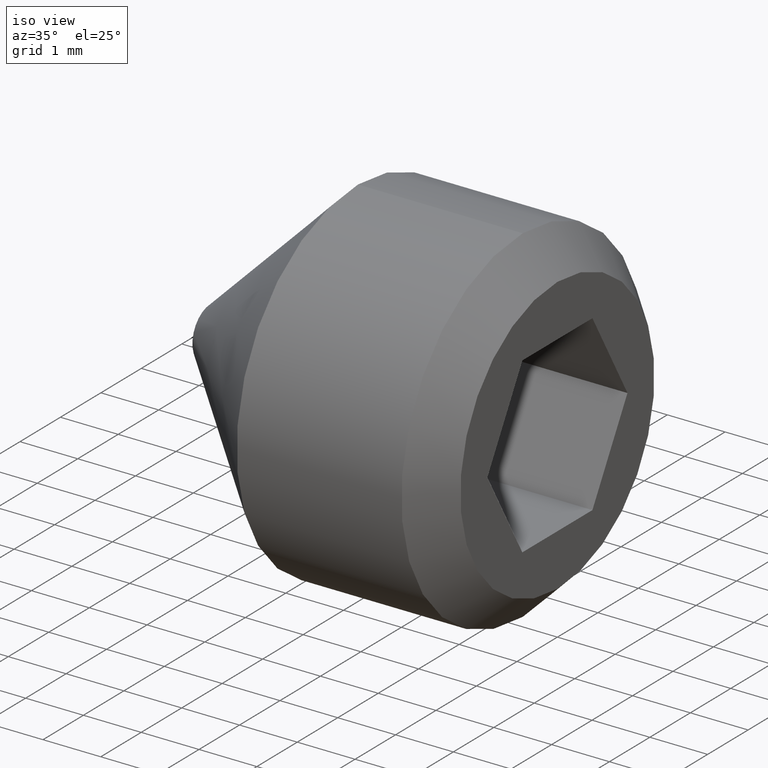
[diagram: clean part render]
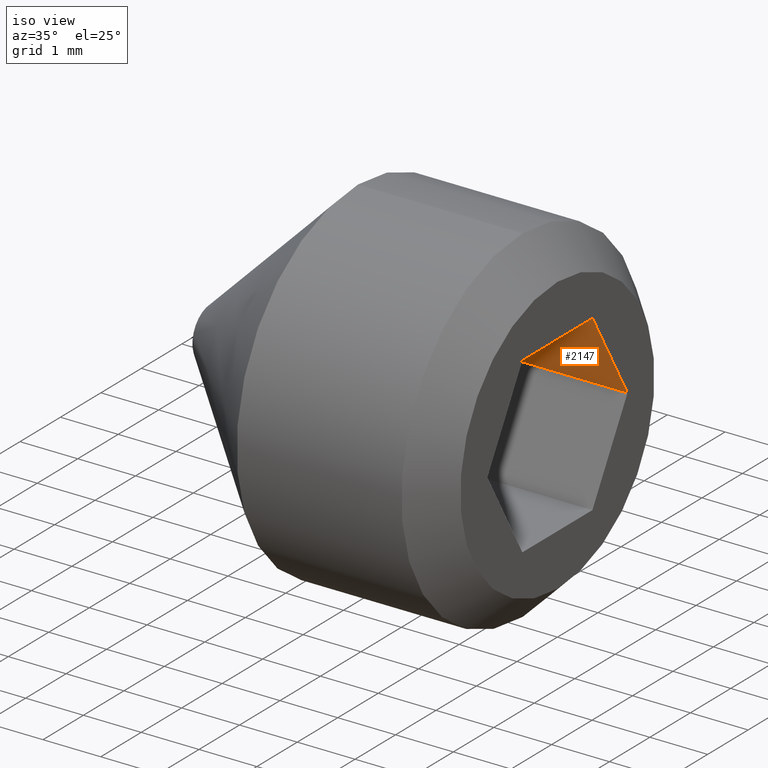
[diagram: same view with one face highlighted and labeled with its STEP entity id]
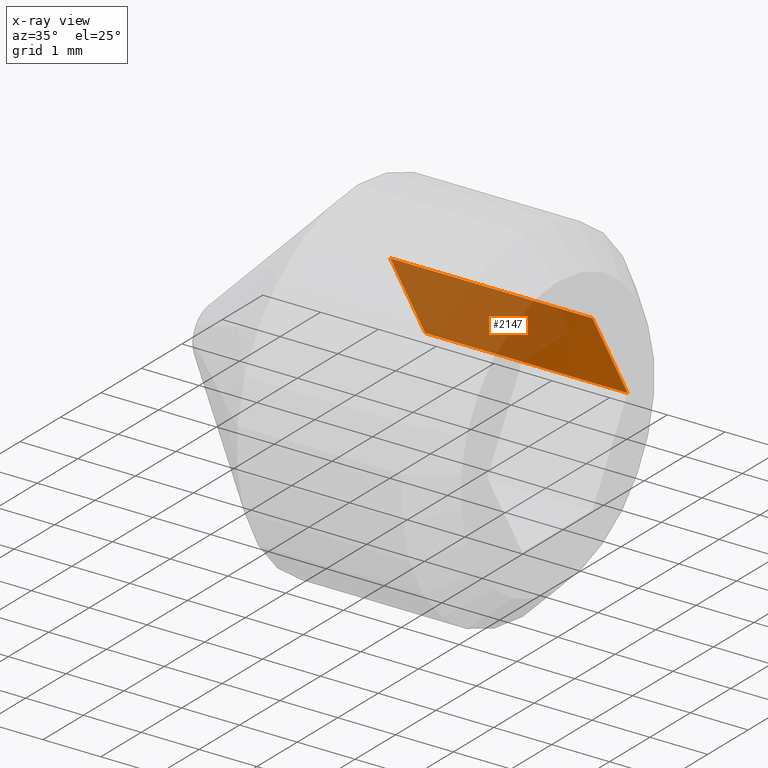
[diagram: x-ray of the same camera — body ghosted, the highlighted face saturated]
A machine part, iso view. The second image highlights one B-rep face of the part: STEP entity #2147.
The next image is the same camera in x-ray: the body ghosted, the highlighted face saturated — about 71% of this face is hidden behind the body in this view.
In plain terms, the highlighted planar face has unit normal (-0, 0.866, 0.5).
Its self-contained STEP definition (entity closure, byte-faithful):
#36 = VECTOR ( 'NONE', #8162, 1000.000000000000000 ) ;
#286 = DIRECTION ( 'NONE',  ( 1.000000000000000000, -0.0000000000000000000, 6.123031769111886300E-017 ) ) ;
#680 = EDGE_CURVE ( 'NONE', #5619, #4256, #2471, .T. ) ;
#943 = DIRECTION ( 'NONE',  ( 0.0000000000000000000, -0.5000000000000000000, 0.8660254037844386000 ) ) ;
#1212 = DIRECTION ( 'NONE',  ( -3.061515884555943800E-017, 0.8660254037844387100, 0.5000000000000001100 ) ) ;
#1507 = CARTESIAN_POINT ( 'NONE',  ( 2.500000000000000000, 1.732050807568877900, 1.891394403777266000E-016 ) ) ;
#2007 = CARTESIAN_POINT ( 'NONE',  ( 2.500000000000000000, 1.732050807568877900, 1.891394403777266000E-016 ) ) ;
#2064 = ORIENTED_EDGE ( 'NONE', *, *, #4387, .F. ) ;
#2147 = ADVANCED_FACE ( 'NONE', ( #6385 ), #3690, .F. ) ;
#2471 = LINE ( 'NONE', #4522, #9095 ) ;
#2600 = CARTESIAN_POINT ( 'NONE',  ( 2.500000000000000000, 1.732050807568877900, 1.891394403777266000E-016 ) ) ;
#2626 = EDGE_CURVE ( 'NONE', #10735, #4256, #2858, .T. ) ;
#2858 = LINE ( 'NONE', #8204, #6663 ) ;
#3690 = PLANE ( 'NONE',  #5421 ) ;
#3766 = VECTOR ( 'NONE', #943, 1000.000000000000200 ) ;
#3933 = VERTEX_POINT ( 'NONE', #2007 ) ;
#4256 = VERTEX_POINT ( 'NONE', #9251 ) ;
#4387 = EDGE_CURVE ( 'NONE', #3933, #5619, #4789, .T. ) ;
#4522 = CARTESIAN_POINT ( 'NONE',  ( 2.500000000000000000, 0.8660254037844393700, 1.499999999999999800 ) ) ;
#4576 = ORIENTED_EDGE ( 'NONE', *, *, #10613, .T. ) ;
#4789 = LINE ( 'NONE', #2600, #3766 ) ;
#4824 = CARTESIAN_POINT ( 'NONE',  ( 6.000000000000000000, 1.732050807568877900, 4.034455522966426400E-016 ) ) ;
#5326 = ORIENTED_EDGE ( 'NONE', *, *, #680, .F. ) ;
#5421 = AXIS2_PLACEMENT_3D ( 'NONE', #5464, #1212, #7941 ) ;
#5464 = CARTESIAN_POINT ( 'NONE',  ( 2.500000000000000000, 1.732050807568877900, 1.891394403777266000E-016 ) ) ;
#5619 = VERTEX_POINT ( 'NONE', #5791 ) ;
#5791 = CARTESIAN_POINT ( 'NONE',  ( 2.500000000000000000, 0.8660254037844393700, 1.499999999999999800 ) ) ;
#6385 = FACE_OUTER_BOUND ( 'NONE', #9606, .T. ) ;
#6663 = VECTOR ( 'NONE', #8953, 1000.000000000000200 ) ;
#6704 = ORIENTED_EDGE ( 'NONE', *, *, #2626, .T. ) ;
#7941 = DIRECTION ( 'NONE',  ( 0.0000000000000000000, -0.5000000000000000000, 0.8660254037844386000 ) ) ;
#8162 = DIRECTION ( 'NONE',  ( 1.000000000000000000, -0.0000000000000000000, 6.123031769111886300E-017 ) ) ;
#8204 = CARTESIAN_POINT ( 'NONE',  ( 6.000000000000000000, 1.732050807568877900, 4.034455522966426400E-016 ) ) ;
#8953 = DIRECTION ( 'NONE',  ( 0.0000000000000000000, -0.5000000000000000000, 0.8660254037844386000 ) ) ;
#9095 = VECTOR ( 'NONE', #286, 1000.000000000000000 ) ;
#9251 = CARTESIAN_POINT ( 'NONE',  ( 6.000000000000000000, 0.8660254037844393700, 1.500000000000000000 ) ) ;
#9606 = EDGE_LOOP ( 'NONE', ( #6704, #5326, #2064, #4576 ) ) ;
#10534 = LINE ( 'NONE', #1507, #36 ) ;
#10613 = EDGE_CURVE ( 'NONE', #3933, #10735, #10534, .T. ) ;
#10735 = VERTEX_POINT ( 'NONE', #4824 ) ;